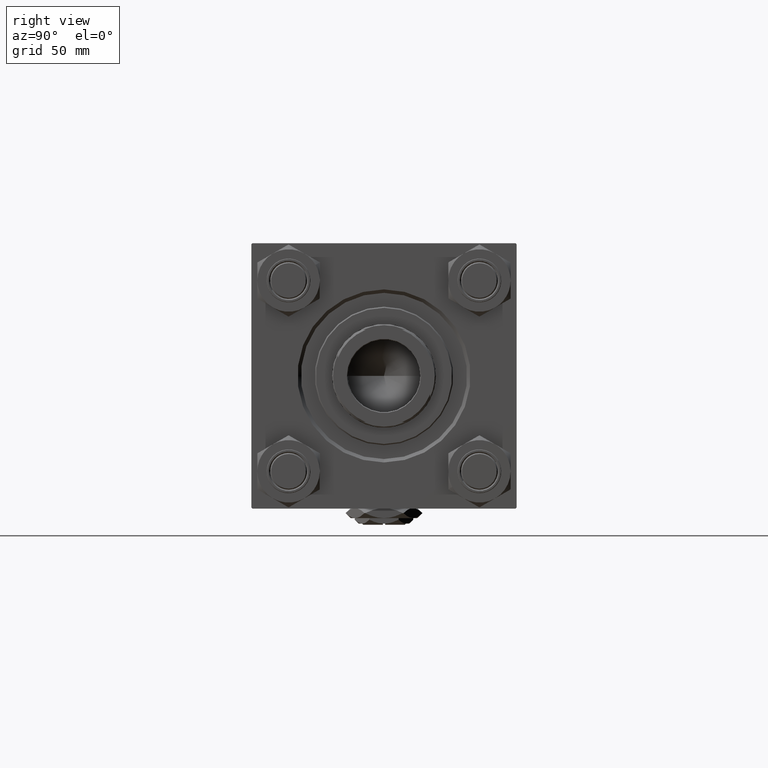
[diagram: clean part render]
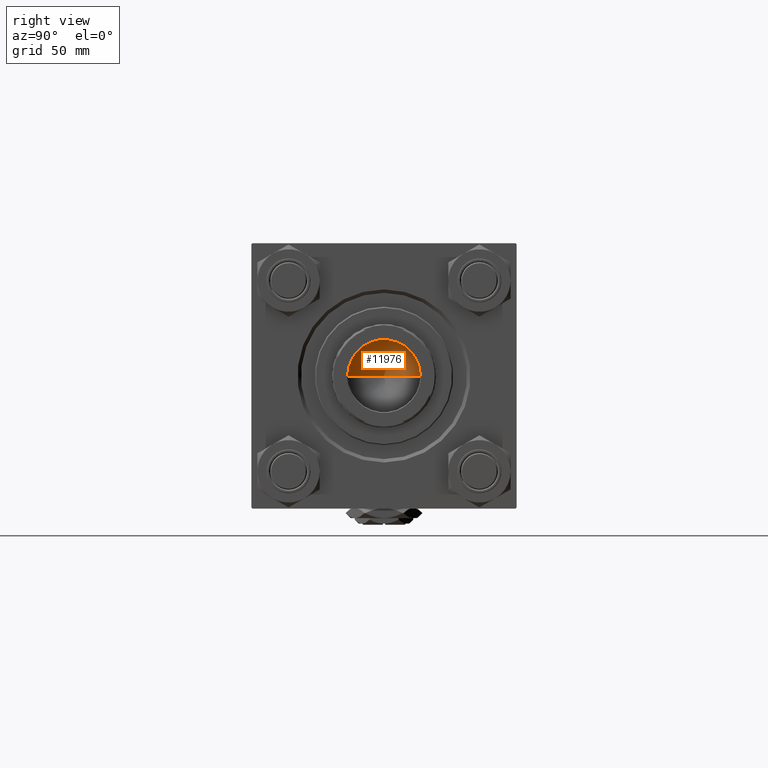
[diagram: same view with one face highlighted and labeled with its STEP entity id]
A machine part, right view. The second image highlights one B-rep face of the part: STEP entity #11976.
In plain terms, the highlighted conical surface has half-angle 59 deg.
Its self-contained STEP definition (entity closure, byte-faithful):
#685 = DIRECTION ( 'NONE',  ( 0.8571673007021115565, 0.000000000000000000, 0.5150380749100554878 ) ) ;
#2501 = DIRECTION ( 'NONE',  ( 1.000000000000000000, 0.000000000000000000, 0.000000000000000000 ) ) ;
#3383 = CIRCLE ( 'NONE', #36300, 15.74999999999998934 ) ;
#4139 = CARTESIAN_POINT ( 'NONE',  ( 15.74999999999998934, 0.000000000000000000, 111.0000000000000000 ) ) ;
#4868 = CARTESIAN_POINT ( 'NONE',  ( -15.74999999999998934, 1.928818708657080161E-15, 111.0000000000000000 ) ) ;
#5297 = CARTESIAN_POINT ( 'NONE',  ( -15.74999999999998934, 1.928818708657080161E-15, 111.0000000000000000 ) ) ;
#5338 = CONICAL_SURFACE ( 'NONE', #34876, 15.74999999999998934, 1.029744258676652979 ) ;
#11976 = ADVANCED_FACE ( 'NONE', ( #51128 ), #5338, .F. ) ;
#15238 = ORIENTED_EDGE ( 'NONE', *, *, #45731, .F. ) ;
#16676 = VERTEX_POINT ( 'NONE', #47866 ) ;
#22039 = CARTESIAN_POINT ( 'NONE',  ( -1.584115414415908206E-14, 0.000000000000000000, 101.5364452503159072 ) ) ;
#22731 = VECTOR ( 'NONE', #685, 1000.000000000000000 ) ;
#24218 = LINE ( 'NONE', #4139, #22731 ) ;
#26553 = CARTESIAN_POINT ( 'NONE',  ( 0.000000000000000000, 0.000000000000000000, 111.0000000000000000 ) ) ;
#28969 = DIRECTION ( 'NONE',  ( -0.000000000000000000, -0.000000000000000000, 1.000000000000000000 ) ) ;
#28994 = ORIENTED_EDGE ( 'NONE', *, *, #49786, .T. ) ;
#32174 = VECTOR ( 'NONE', #33328, 1000.000000000000000 ) ;
#33328 = DIRECTION ( 'NONE',  ( -0.8571673007021115565, 1.049727191138617710E-16, 0.5150380749100554878 ) ) ;
#34876 = AXIS2_PLACEMENT_3D ( 'NONE', #26553, #38711, #2501 ) ;
#36300 = AXIS2_PLACEMENT_3D ( 'NONE', #48552, #28969, #48027 ) ;
#38711 = DIRECTION ( 'NONE',  ( -0.000000000000000000, -0.000000000000000000, 1.000000000000000000 ) ) ;
#40357 = ORIENTED_EDGE ( 'NONE', *, *, #45795, .T. ) ;
#40869 = EDGE_LOOP ( 'NONE', ( #15238, #28994, #40357 ) ) ;
#41385 = VERTEX_POINT ( 'NONE', #4868 ) ;
#45731 = EDGE_CURVE ( 'NONE', #51268, #16676, #24218, .T. ) ;
#45795 = EDGE_CURVE ( 'NONE', #41385, #16676, #3383, .T. ) ;
#47866 = CARTESIAN_POINT ( 'NONE',  ( 15.74999999999998934, 0.000000000000000000, 111.0000000000000000 ) ) ;
#48027 = DIRECTION ( 'NONE',  ( 1.000000000000000000, 0.000000000000000000, 0.000000000000000000 ) ) ;
#48552 = CARTESIAN_POINT ( 'NONE',  ( 0.000000000000000000, 0.000000000000000000, 111.0000000000000000 ) ) ;
#49719 = LINE ( 'NONE', #5297, #32174 ) ;
#49786 = EDGE_CURVE ( 'NONE', #51268, #41385, #49719, .T. ) ;
#51128 = FACE_OUTER_BOUND ( 'NONE', #40869, .T. ) ;
#51268 = VERTEX_POINT ( 'NONE', #22039 ) ;